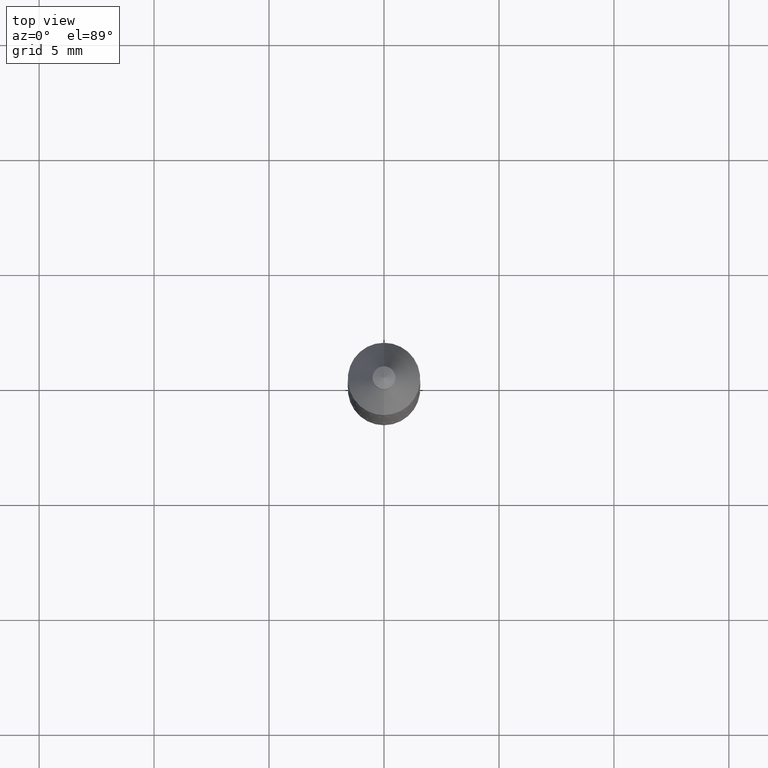
[diagram: clean part render]
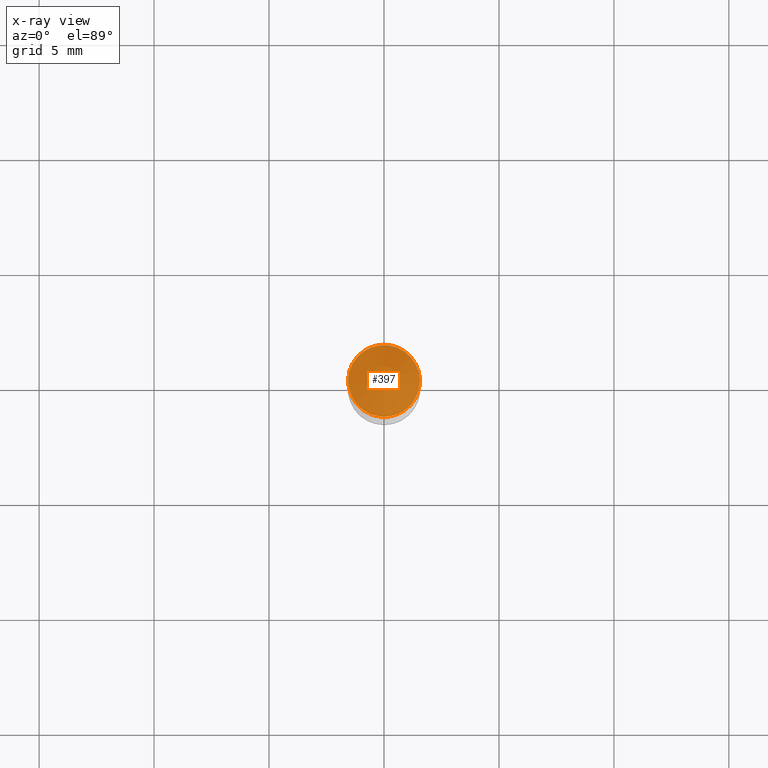
[diagram: x-ray — body ghosted, one internal face saturated and labeled with its STEP entity id]
A machine part, top view, then the same camera in x-ray: the body is ghosted and one INTERNAL B-rep face — a face not visible from any outside direction — is saturated and labeled: STEP entity #397.
In plain terms, the highlighted planar face has unit normal (-0, 0, 1).
Its self-contained STEP definition (entity closure, byte-faithful):
#36 = AXIS2_PLACEMENT_3D ( 'NONE', #361, #51, #260 ) ;
#45 = AXIS2_PLACEMENT_3D ( 'NONE', #554, #80, #289 ) ;
#51 = DIRECTION ( 'NONE',  ( -2.438088387897960049E-29, 3.491481338843145188E-15, 1.000000000000000000 ) ) ;
#80 = DIRECTION ( 'NONE',  ( -2.445468806185136597E-29, 3.491481338843145583E-15, 1.000000000000000000 ) ) ;
#211 = DIRECTION ( 'NONE',  ( -2.445468806185136597E-29, 3.491481338843145583E-15, 1.000000000000000000 ) ) ;
#260 = DIRECTION ( 'NONE',  ( -1.000000000000000000, 6.982962677686265922E-15, -4.876176775795935793E-29 ) ) ;
#268 = CARTESIAN_POINT ( 'NONE',  ( -7.165223602122446170E-30, 1.023004032281041126E-15, 0.2929999999999998717 ) ) ;
#274 = VERTEX_POINT ( 'NONE', #435 ) ;
#289 = DIRECTION ( 'NONE',  ( 1.000000000000000000, -6.982962677686265922E-15, 0.000000000000000000 ) ) ;
#301 = CARTESIAN_POINT ( 'NONE',  ( -0.06150000000000003381, 1.445766913308722634E-15, 0.2929999999999998717 ) ) ;
#336 = EDGE_CURVE ( 'NONE', #598, #274, #654, .T. ) ;
#361 = CARTESIAN_POINT ( 'NONE',  ( -6.029170141513745579E-30, 1.185693353854949397E-15, 0.2929999999999998717 ) ) ;
#394 = ORIENTED_EDGE ( 'NONE', *, *, #508, .T. ) ;
#397 = ADVANCED_FACE ( 'NONE', ( #430 ), #480, .T. ) ;
#426 = DIRECTION ( 'NONE',  ( 1.000000000000000000, -6.982962677686265922E-15, 0.000000000000000000 ) ) ;
#430 = FACE_OUTER_BOUND ( 'NONE', #629, .T. ) ;
#435 = CARTESIAN_POINT ( 'NONE',  ( 0.06150000000000003381, 5.935518276033354709E-16, 0.2929999999999998717 ) ) ;
#480 = PLANE ( 'NONE',  #36 ) ;
#496 = AXIS2_PLACEMENT_3D ( 'NONE', #268, #211, #426 ) ;
#508 = EDGE_CURVE ( 'NONE', #274, #598, #578, .T. ) ;
#554 = CARTESIAN_POINT ( 'NONE',  ( -7.165223602122446170E-30, 1.023004032281041126E-15, 0.2929999999999998717 ) ) ;
#578 = CIRCLE ( 'NONE', #45, 0.06150000000000003381 ) ;
#598 = VERTEX_POINT ( 'NONE', #301 ) ;
#629 = EDGE_LOOP ( 'NONE', ( #394, #649 ) ) ;
#649 = ORIENTED_EDGE ( 'NONE', *, *, #336, .T. ) ;
#654 = CIRCLE ( 'NONE', #496, 0.06150000000000003381 ) ;